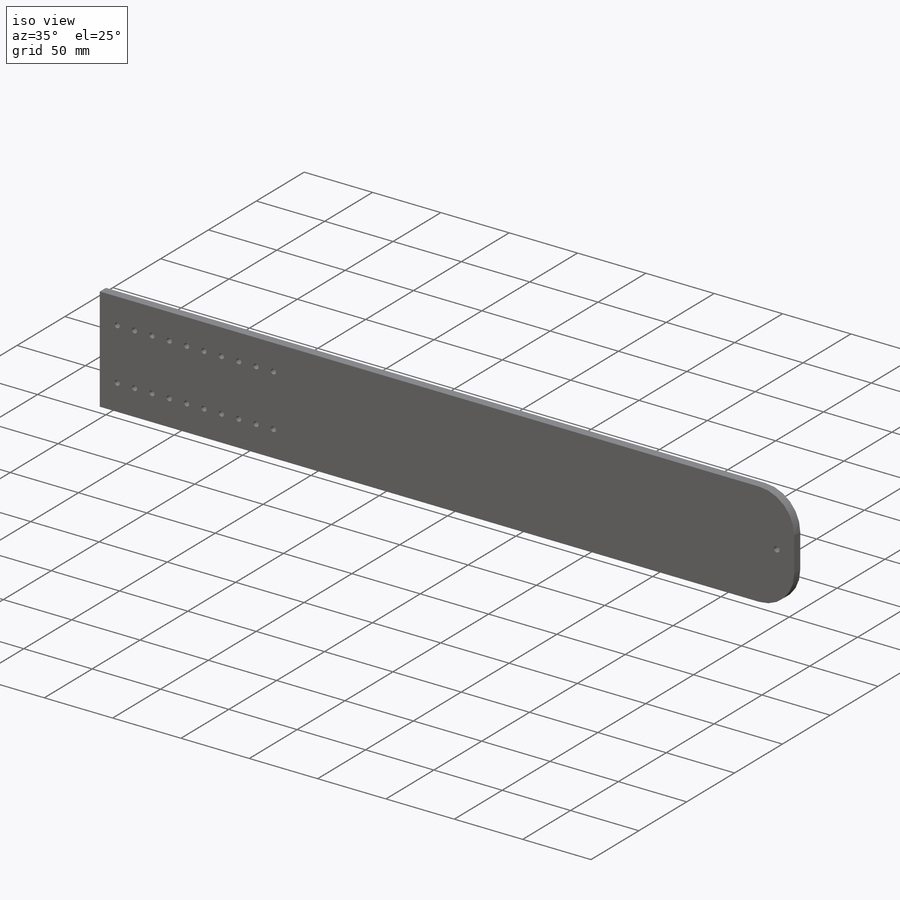
[diagram: iso view]
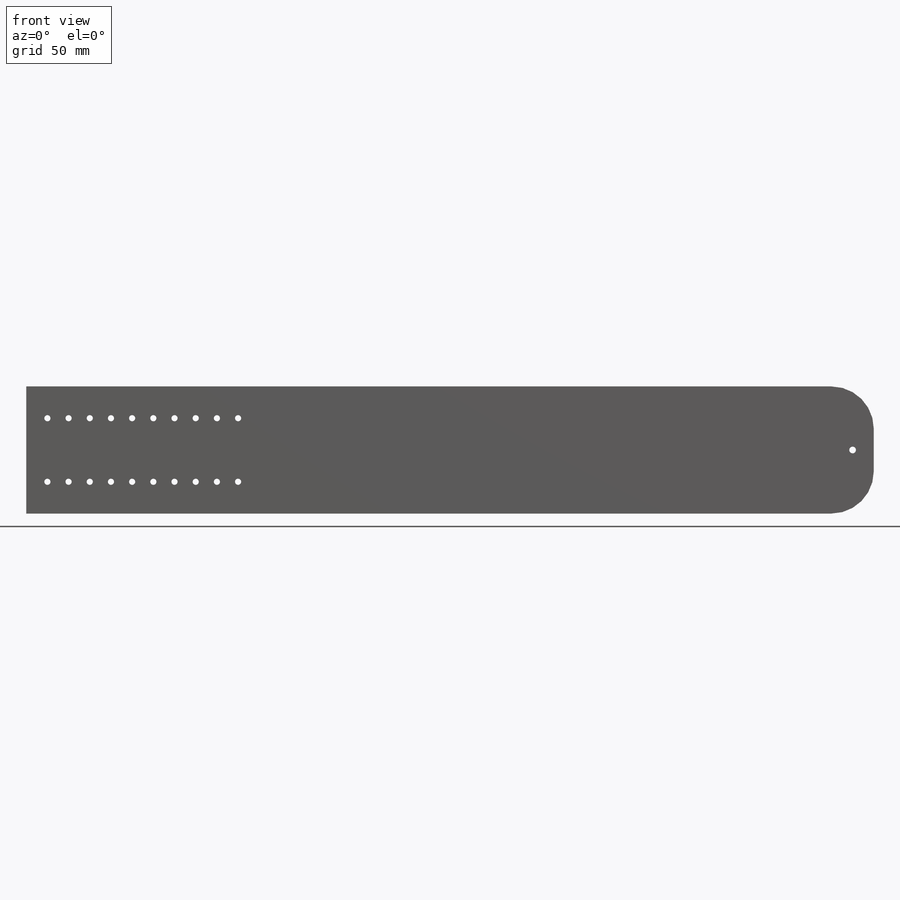
[diagram: front view]
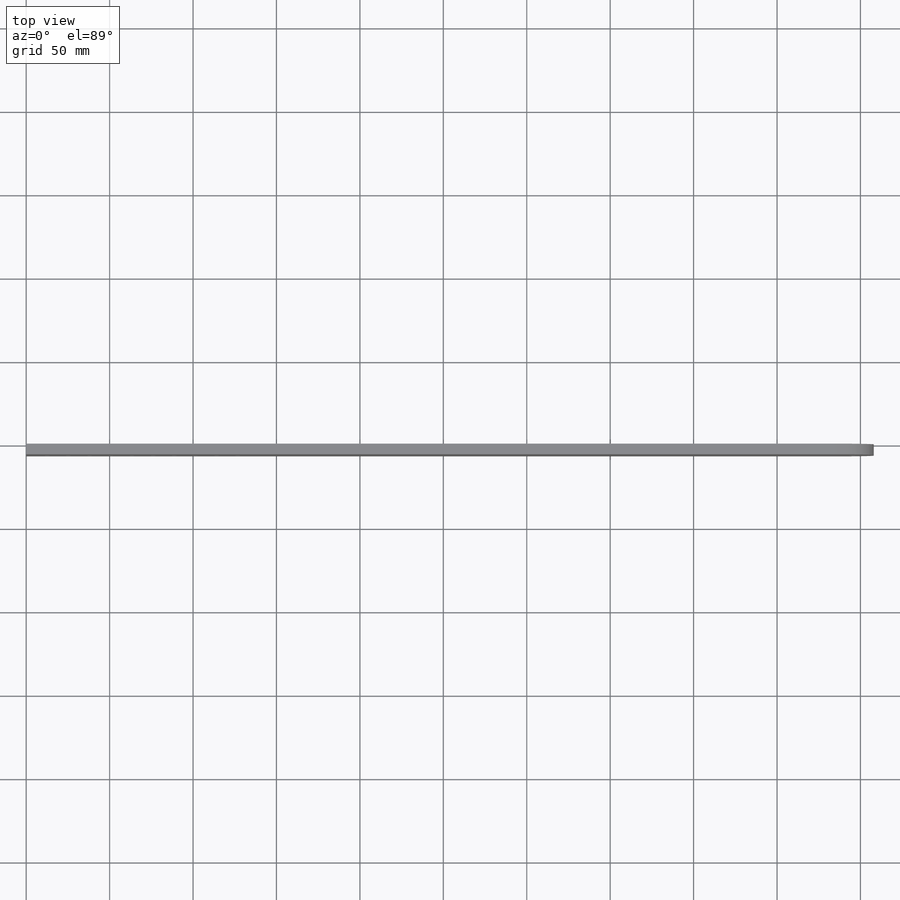
[diagram: top view]
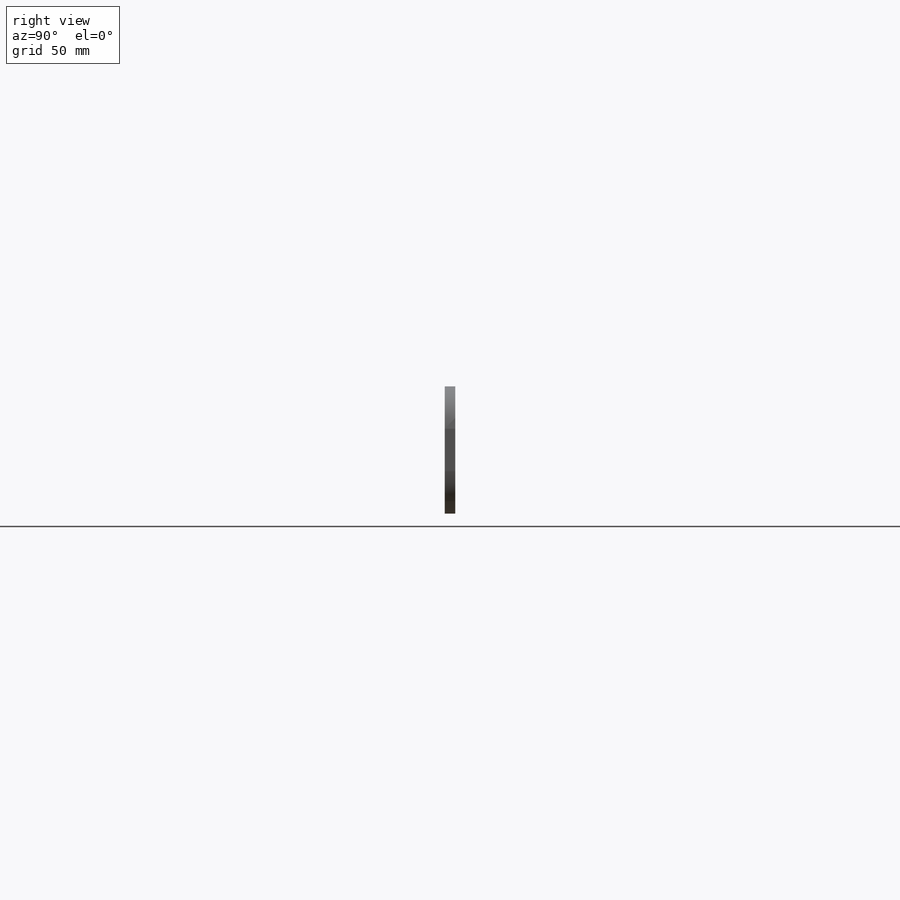
[diagram: right view]
SOLIDWORKS PART (.sldprt)
format: sldprt  version: not decoded by parser v0  size: 385,024 bytes
history: native  units: mm
features: sketch x3, cut_extrude x2, material x1, extrude x1, fillet x1 (+11 scaffold rows collapsed)
feature tree (19):
  scaffold x11  (default folders/planes/origin — collapsed)
  material  "Material <not specified>"
  sketch  "Sketch1"  dims[D1=508.0mm D2=76.2mm]
  extrude  "basic_plank"  Depth=6.35mm
  sketch  "Sketch2"  dims[c1.D1=3.683mm c1.D2=19.05mm c1.D3=~25.015448mm c2.D3=90.0deg c3.D3=~25.015448mm c4.D3=90.0deg c5.D3=12.7mm c5.D4=10.0 c5.D5=2.0]
  cut_extrude  "placement holes"  [1 undecoded]
  fillet  "Fillet1"  Radius=25.4mm
  sketch  "Sketch3"  dims[c1.D1=4.0132mm c1.D3=3.81mm c1.D2=12.7mm c2.D3=38.1mm]
  cut_extrude  "wheel_hole"  [1 undecoded]
decode coverage: 5 of 7 modeling features carry decoded parameters
note: ~ marks probable driven/reference dimensions
note: 2 parameter values undecoded
note: suppression state not decoded; provenance and decode notes live in map.json
